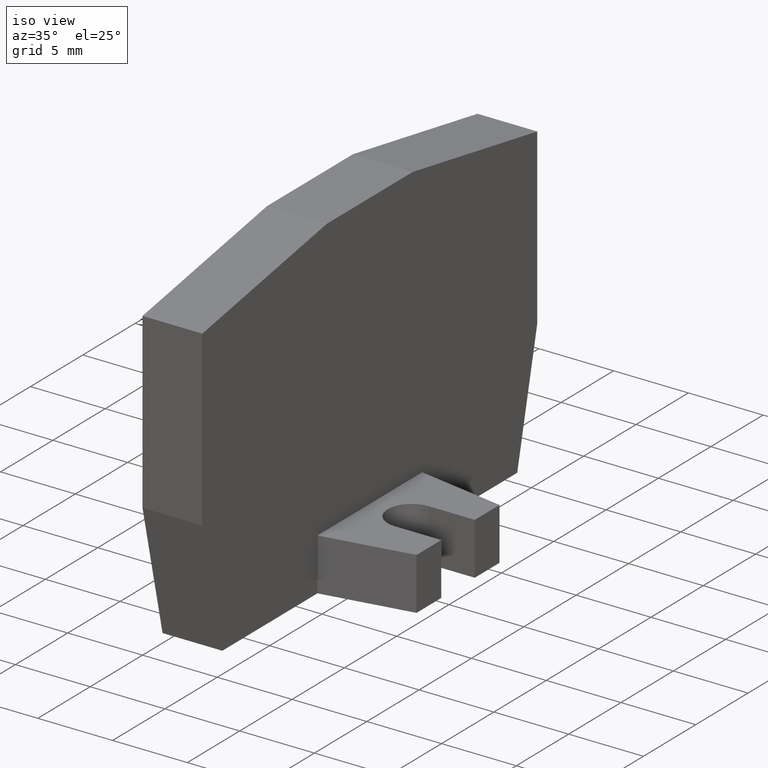
[diagram: clean part render]
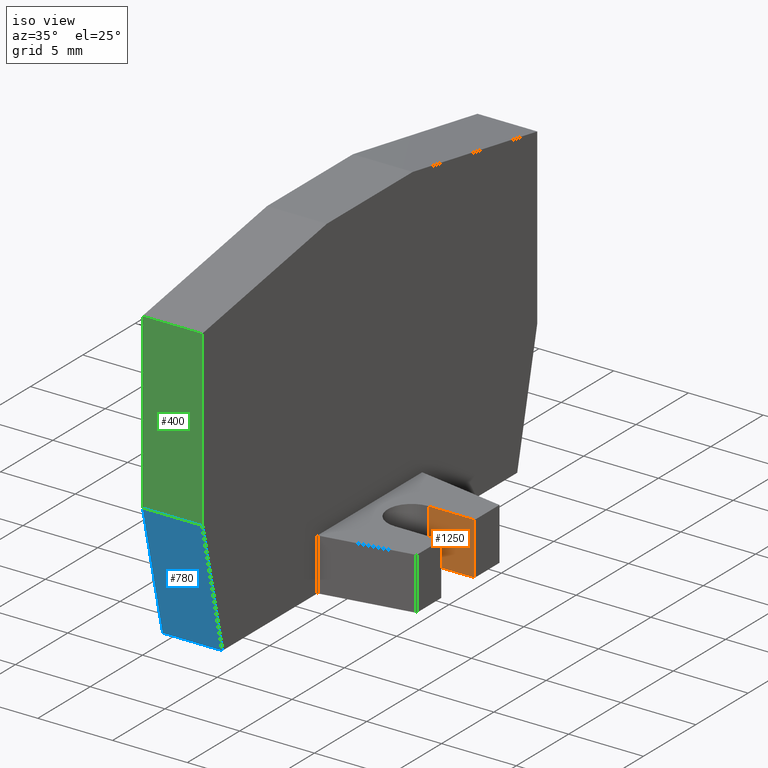
[diagram: same view with three faces highlighted in distinct colors, each labeled with its STEP entity id]
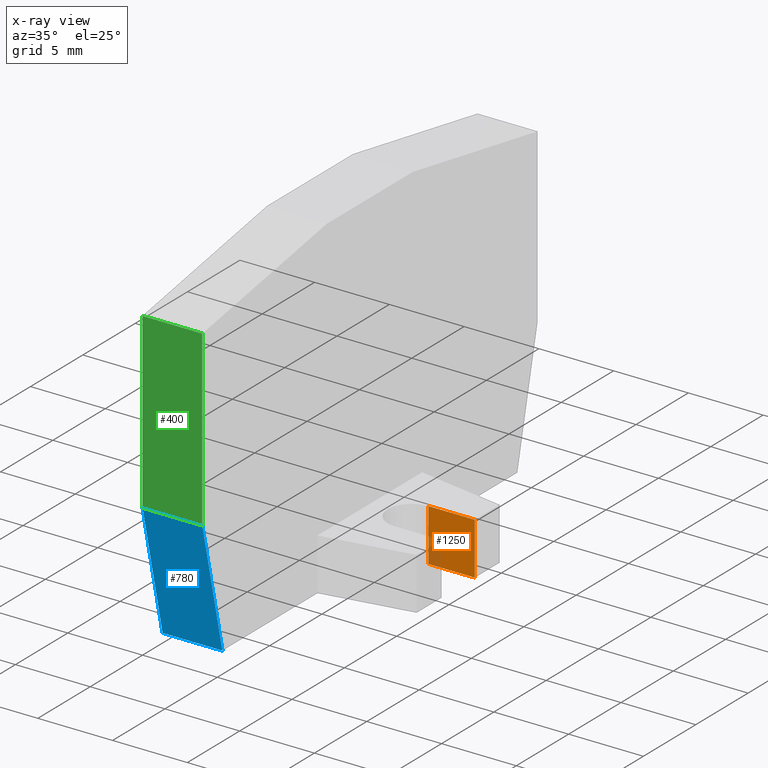
[diagram: x-ray of the same camera — body ghosted, the three highlighted faces saturated]
A machine part, iso view with three faces highlighted in distinct colors.
The next image is the same camera in x-ray (body ghosted, the three faces saturated) — at least one of them is partly hidden behind the body in this view.
Their STEP definitions:

[orange] entity #1250 — the highlighted planar face has unit normal (0, -1, 0).
#860=CARTESIAN_POINT('',(13.5335529569918,102.71779049095,
12.7277564886281));
#870=DIRECTION('',(-1.,0.,0.));
#880=DIRECTION('',(0.,0.,1.));
#890=AXIS2_PLACEMENT_3D('',#860,#870,#880);
#900=PLANE('',#890);
#910=CARTESIAN_POINT('',(13.5335529569918,102.71779049095,
3.8277564886281));
#920=DIRECTION('',(0.,0.,-1.));
#930=VECTOR('',#920,1.);
#940=LINE('',#910,#930);
#950=CARTESIAN_POINT('',(13.5335529569918,102.71779049095,
13.7277564886282));
#960=VERTEX_POINT('',#950);
#970=CARTESIAN_POINT('',(13.5335529569918,102.71779049095,
10.6277564886281));
#980=VERTEX_POINT('',#970);
#990=EDGE_CURVE('',#960,#980,#940,.T.);
#1000=ORIENTED_EDGE('',*,*,#990,.F.);
#1010=CARTESIAN_POINT('',(13.5335529569918,102.71779049095,
10.6277564886281));
#1020=DIRECTION('',(0.,1.,0.));
#1030=VECTOR('',#1020,1.);
#1040=LINE('',#1010,#1030);
#1050=CARTESIAN_POINT('',(13.5335529569918,106.21779049095,
10.6277564886281));
#1060=VERTEX_POINT('',#1050);
#1070=EDGE_CURVE('',#980,#1060,#1040,.T.);
#1080=ORIENTED_EDGE('',*,*,#1070,.F.);
#1090=CARTESIAN_POINT('',(13.5335529569918,106.21779049095,
3.8277564886281));
#1100=DIRECTION('',(0.,0.,-1.));
#1110=VECTOR('',#1100,1.);
#1120=LINE('',#1090,#1110);
#1130=CARTESIAN_POINT('',(13.5335529569918,106.21779049095,
13.7277564886282));
#1140=VERTEX_POINT('',#1130);
#1150=EDGE_CURVE('',#1140,#1060,#1120,.T.);
#1160=ORIENTED_EDGE('',*,*,#1150,.T.);
#1170=CARTESIAN_POINT('',(13.5335529569918,122.790993259522,
13.7277564886282));
#1180=DIRECTION('',(0.,-1.,0.));
#1190=VECTOR('',#1180,1.);
#1200=LINE('',#1170,#1190);
#1210=EDGE_CURVE('',#1140,#960,#1200,.T.);
#1220=ORIENTED_EDGE('',*,*,#1210,.F.);
#1230=EDGE_LOOP('',(#1220,#1160,#1080,#1000));
#1240=FACE_OUTER_BOUND('',#1230,.T.);
#1250=ADVANCED_FACE('',(#1240),#900,.T.);

[blue] entity #780 — the highlighted planar face has unit normal (-0, -0.9744, -0.225).
#200=CARTESIAN_POINT('',(-4.06644704301013,111.01779049095,
7.8277564886281));
#210=VERTEX_POINT('',#200);
#240=CARTESIAN_POINT('',(-4.06644704301013,111.01779049095,
3.8277564886281));
#250=DIRECTION('',(0.,0.,1.));
#260=VECTOR('',#250,1.);
#270=LINE('',#240,#260);
#280=CARTESIAN_POINT('',(-4.06644704301013,111.01779049095,
3.8277564886281));
#290=VERTEX_POINT('',#280);
#300=EDGE_CURVE('',#290,#210,#270,.T.);
#480=CARTESIAN_POINT('',(-2.32917520478512,103.492839436606,
3.8277564886281));
#490=DIRECTION('',(-0.974370064785228,-0.224951054343896,-0.));
#500=DIRECTION('',(-0.224951054343896,0.974370064785228,0.));
#510=AXIS2_PLACEMENT_3D('',#480,#490,#500);
#520=PLANE('',#510);
#530=CARTESIAN_POINT('',(-6.78450506994527,122.790993259522,
3.8277564886281));
#540=DIRECTION('',(-0.224951054343896,0.974370064785228,0.));
#550=VECTOR('',#540,1.);
#560=LINE('',#530,#550);
#570=CARTESIAN_POINT('',(-2.15024105666769,102.71779049095,
3.8277564886281));
#580=VERTEX_POINT('',#570);
#590=EDGE_CURVE('',#580,#290,#560,.T.);
#600=ORIENTED_EDGE('',*,*,#590,.F.);
#610=ORIENTED_EDGE('',*,*,#300,.F.);
#620=CARTESIAN_POINT('',(-6.78450506994527,122.790993259522,
7.8277564886281));
#630=DIRECTION('',(0.224951054343896,-0.974370064785228,0.));
#640=VECTOR('',#630,1.);
#650=LINE('',#620,#640);
#660=CARTESIAN_POINT('',(-2.1502410566677,102.71779049095,
7.8277564886281));
#670=VERTEX_POINT('',#660);
#680=EDGE_CURVE('',#210,#670,#650,.T.);
#690=ORIENTED_EDGE('',*,*,#680,.F.);
#700=CARTESIAN_POINT('',(-2.1502410566677,102.71779049095,
3.8277564886281));
#710=DIRECTION('',(0.,0.,-1.));
#720=VECTOR('',#710,1.);
#730=LINE('',#700,#720);
#740=EDGE_CURVE('',#670,#580,#730,.T.);
#750=ORIENTED_EDGE('',*,*,#740,.F.);
#760=EDGE_LOOP('',(#750,#690,#610,#600));
#770=FACE_OUTER_BOUND('',#760,.T.);
#780=ADVANCED_FACE('',(#770),#520,.T.);

[green] entity #400 — the highlighted planar face has unit normal (0, -1, 0).
#10=CARTESIAN_POINT('',(-4.06644704301013,111.01779049095,
3.8277564886281));
#20=DIRECTION('',(-1.,2.54170139600954E-15,0.));
#30=DIRECTION('',(2.54170139600954E-15,1.,0.));
#40=AXIS2_PLACEMENT_3D('',#10,#20,#30);
#50=PLANE('',#40);
#60=CARTESIAN_POINT('',(-4.0664470430101,122.619499420518,
3.8277564886281));
#70=DIRECTION('',(0.,0.,-1.));
#80=VECTOR('',#70,1.);
#90=LINE('',#60,#80);
#100=CARTESIAN_POINT('',(-4.06644704301012,122.619499420518,
7.8277564886281));
#110=VERTEX_POINT('',#100);
#120=CARTESIAN_POINT('',(-4.06644704301012,122.619499420518,
3.8277564886281));
#130=VERTEX_POINT('',#120);
#140=EDGE_CURVE('',#110,#130,#90,.T.);
#150=ORIENTED_EDGE('',*,*,#140,.T.);
#160=CARTESIAN_POINT('',(-4.0664470430101,122.790993259522,
7.8277564886281));
#170=DIRECTION('',(-2.54170139600954E-15,-1.,0.));
#180=VECTOR('',#170,1.);
#190=LINE('',#160,#180);
#200=CARTESIAN_POINT('',(-4.06644704301013,111.01779049095,
7.8277564886281));
#210=VERTEX_POINT('',#200);
#220=EDGE_CURVE('',#110,#210,#190,.T.);
#230=ORIENTED_EDGE('',*,*,#220,.F.);
#240=CARTESIAN_POINT('',(-4.06644704301013,111.01779049095,
3.8277564886281));
#250=DIRECTION('',(0.,0.,1.));
#260=VECTOR('',#250,1.);
#270=LINE('',#240,#260);
#280=CARTESIAN_POINT('',(-4.06644704301013,111.01779049095,
3.8277564886281));
#290=VERTEX_POINT('',#280);
#300=EDGE_CURVE('',#290,#210,#270,.T.);
#310=ORIENTED_EDGE('',*,*,#300,.T.);
#320=CARTESIAN_POINT('',(-4.0664470430101,122.790993259522,
3.8277564886281));
#330=DIRECTION('',(2.54170139600954E-15,1.,6.31088724176809E-30));
#340=VECTOR('',#330,1.);
#350=LINE('',#320,#340);
#360=EDGE_CURVE('',#290,#130,#350,.T.);
#370=ORIENTED_EDGE('',*,*,#360,.F.);
#380=EDGE_LOOP('',(#370,#310,#230,#150));
#390=FACE_OUTER_BOUND('',#380,.T.);
#400=ADVANCED_FACE('',(#390),#50,.T.);